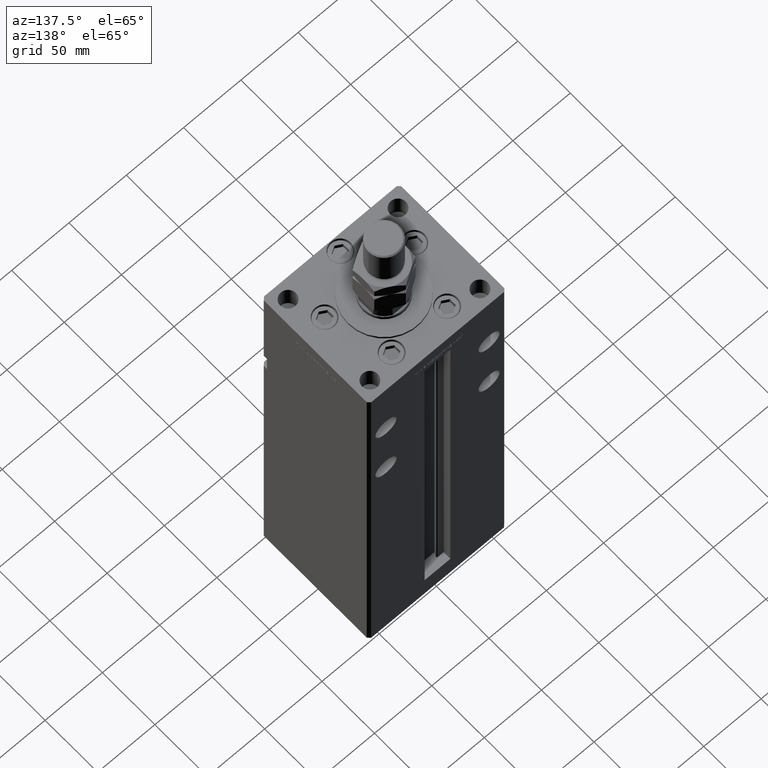
[diagram: clean part render]
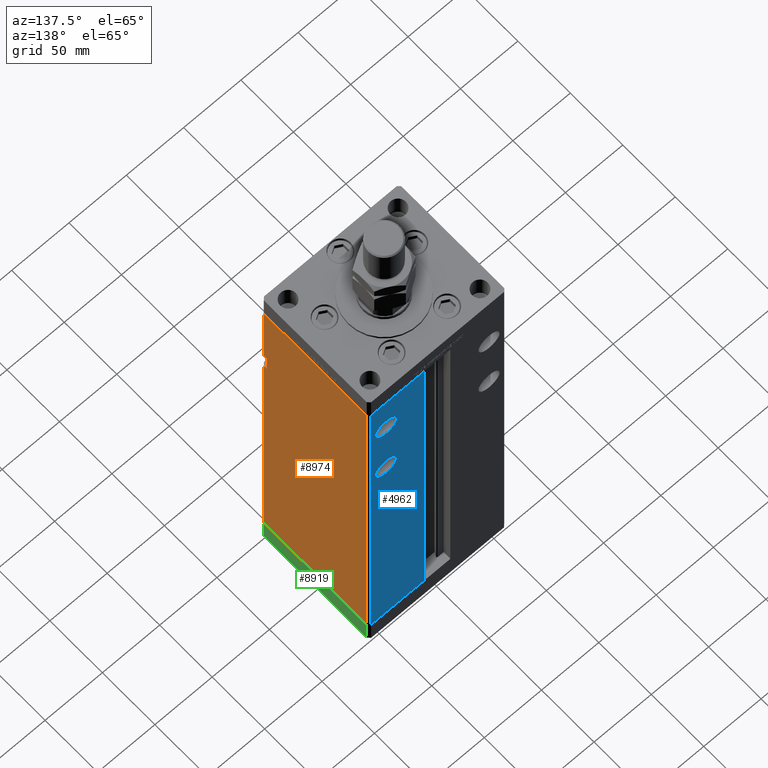
[diagram: same view with three faces highlighted in distinct colors, each labeled with its STEP entity id]
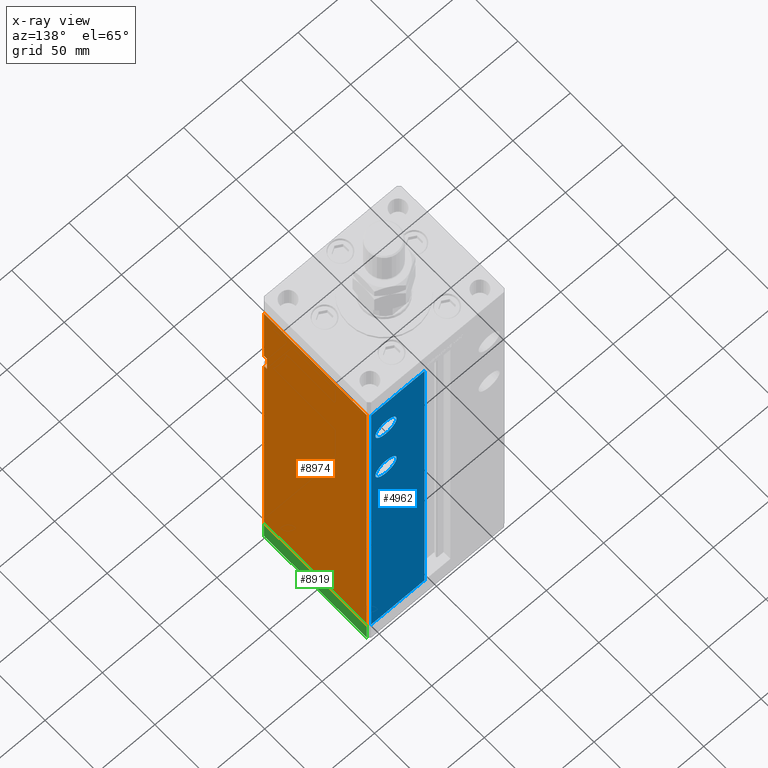
[diagram: x-ray of the same camera — body ghosted, the three highlighted faces saturated]
A machine part, auxiliary view with three faces highlighted in distinct colors.
The next image is the same camera in x-ray (body ghosted, the three faces saturated) — at least one of them is partly hidden behind the body in this view.
Their STEP definitions:

[orange] entity #8974 — the highlighted planar face has unit normal (1, -0, 0).
#2611 = VECTOR ( 'NONE', #12647, 1000.000000000000000 ) ;
#4215 = LINE ( 'NONE', #37969, #7097 ) ;
#4832 = DIRECTION ( 'NONE',  ( -0.000000000000000000, -1.000000000000000000, -0.000000000000000000 ) ) ;
#5504 = CARTESIAN_POINT ( 'NONE',  ( 60.00000000000001421, 49.00000000000000000, 0.000000000000000000 ) ) ;
#6026 = CARTESIAN_POINT ( 'NONE',  ( 59.99999999999998579, -46.00000000000000000, 239.0000000000000568 ) ) ;
#6085 = VECTOR ( 'NONE', #4832, 1000.000000000000000 ) ;
#7097 = VECTOR ( 'NONE', #29146, 1000.000000000000000 ) ;
#7158 = VERTEX_POINT ( 'NONE', #44858 ) ;
#7879 = CARTESIAN_POINT ( 'NONE',  ( 60.00000000000001421, 49.00000000000000000, 318.5000000000000000 ) ) ;
#8974 = ADVANCED_FACE ( 'NONE', ( #54634 ), #20356, .T. ) ;
#9258 = CARTESIAN_POINT ( 'NONE',  ( 59.99999999999998579, -45.99999999999999289, 254.0000000000000568 ) ) ;
#11767 = EDGE_CURVE ( 'NONE', #25380, #7158, #27939, .T. ) ;
#12077 = VECTOR ( 'NONE', #40346, 1000.000000000000000 ) ;
#12213 = CARTESIAN_POINT ( 'NONE',  ( 60.00000000000001421, 49.00000000000000000, 0.000000000000000000 ) ) ;
#12495 = LINE ( 'NONE', #12213, #20153 ) ;
#12647 = DIRECTION ( 'NONE',  ( -0.000000000000000000, -0.000000000000000000, 1.000000000000000000 ) ) ;
#13315 = VECTOR ( 'NONE', #53646, 1000.000000000000000 ) ;
#13455 = ORIENTED_EDGE ( 'NONE', *, *, #18091, .T. ) ;
#14052 = LINE ( 'NONE', #30955, #52824 ) ;
#14700 = VERTEX_POINT ( 'NONE', #34070 ) ;
#16931 = DIRECTION ( 'NONE',  ( -2.832201593431522219E-16, -1.000000000000000000, 0.000000000000000000 ) ) ;
#17924 = ORIENTED_EDGE ( 'NONE', *, *, #20737, .T. ) ;
#18091 = EDGE_CURVE ( 'NONE', #24128, #25380, #36201, .T. ) ;
#18800 = CARTESIAN_POINT ( 'NONE',  ( 59.99999999999998579, -48.99999999999998579, 0.000000000000000000 ) ) ;
#19413 = EDGE_CURVE ( 'NONE', #25080, #50049, #12495, .T. ) ;
#20153 = VECTOR ( 'NONE', #16931, 1000.000000000000000 ) ;
#20184 = VERTEX_POINT ( 'NONE', #44970 ) ;
#20356 = PLANE ( 'NONE',  #49569 ) ;
#20737 = EDGE_CURVE ( 'NONE', #14700, #50049, #14052, .T. ) ;
#21510 = LINE ( 'NONE', #54431, #2611 ) ;
#23484 = CARTESIAN_POINT ( 'NONE',  ( 60.00000000000001421, 49.00000000000000000, 318.5000000000000000 ) ) ;
#24128 = VERTEX_POINT ( 'NONE', #48721 ) ;
#24440 = EDGE_CURVE ( 'NONE', #27173, #20184, #21510, .T. ) ;
#24749 = CARTESIAN_POINT ( 'NONE',  ( 59.99999999999998579, -45.99999999999999289, 239.0000000000000568 ) ) ;
#25065 = DIRECTION ( 'NONE',  ( 1.000000000000000000, -2.832201593431522219E-16, 0.000000000000000000 ) ) ;
#25080 = VERTEX_POINT ( 'NONE', #5504 ) ;
#25380 = VERTEX_POINT ( 'NONE', #27296 ) ;
#26493 = EDGE_LOOP ( 'NONE', ( #38956, #17924, #28713, #50087, #13455, #44208, #41699, #41282 ) ) ;
#27173 = VERTEX_POINT ( 'NONE', #6026 ) ;
#27296 = CARTESIAN_POINT ( 'NONE',  ( 59.99999999999998579, -48.99999999999998579, 318.5000000000000000 ) ) ;
#27562 = EDGE_CURVE ( 'NONE', #20184, #7158, #29760, .T. ) ;
#27939 = LINE ( 'NONE', #48120, #13315 ) ;
#28713 = ORIENTED_EDGE ( 'NONE', *, *, #19413, .F. ) ;
#29146 = DIRECTION ( 'NONE',  ( -0.000000000000000000, -0.000000000000000000, -1.000000000000000000 ) ) ;
#29760 = LINE ( 'NONE', #9258, #6085 ) ;
#30676 = EDGE_CURVE ( 'NONE', #24128, #25080, #4215, .T. ) ;
#30955 = CARTESIAN_POINT ( 'NONE',  ( 59.99999999999998579, -48.99999999999998579, 318.5000000000000000 ) ) ;
#33326 = DIRECTION ( 'NONE',  ( -0.000000000000000000, -1.000000000000000000, -0.000000000000000000 ) ) ;
#33597 = LINE ( 'NONE', #24749, #39159 ) ;
#34070 = CARTESIAN_POINT ( 'NONE',  ( 59.99999999999998579, -48.99999999999998579, 239.0000000000000568 ) ) ;
#36201 = LINE ( 'NONE', #23484, #12077 ) ;
#37969 = CARTESIAN_POINT ( 'NONE',  ( 60.00000000000001421, 49.00000000000000000, 318.5000000000000000 ) ) ;
#38956 = ORIENTED_EDGE ( 'NONE', *, *, #43377, .T. ) ;
#39159 = VECTOR ( 'NONE', #33326, 1000.000000000000000 ) ;
#40346 = DIRECTION ( 'NONE',  ( -2.832201593431522219E-16, -1.000000000000000000, 0.000000000000000000 ) ) ;
#41282 = ORIENTED_EDGE ( 'NONE', *, *, #24440, .F. ) ;
#41699 = ORIENTED_EDGE ( 'NONE', *, *, #27562, .F. ) ;
#42190 = DIRECTION ( 'NONE',  ( 2.832201593431522219E-16, 1.000000000000000000, 0.000000000000000000 ) ) ;
#43377 = EDGE_CURVE ( 'NONE', #27173, #14700, #33597, .T. ) ;
#44208 = ORIENTED_EDGE ( 'NONE', *, *, #11767, .T. ) ;
#44768 = DIRECTION ( 'NONE',  ( -0.000000000000000000, -0.000000000000000000, -1.000000000000000000 ) ) ;
#44858 = CARTESIAN_POINT ( 'NONE',  ( 59.99999999999998579, -48.99999999999998579, 254.0000000000000568 ) ) ;
#44970 = CARTESIAN_POINT ( 'NONE',  ( 59.99999999999998579, -45.99999999999999289, 254.0000000000000568 ) ) ;
#48120 = CARTESIAN_POINT ( 'NONE',  ( 59.99999999999998579, -48.99999999999998579, 318.5000000000000000 ) ) ;
#48721 = CARTESIAN_POINT ( 'NONE',  ( 60.00000000000001421, 49.00000000000000000, 318.5000000000000000 ) ) ;
#49569 = AXIS2_PLACEMENT_3D ( 'NONE', #7879, #25065, #42190 ) ;
#50049 = VERTEX_POINT ( 'NONE', #18800 ) ;
#50087 = ORIENTED_EDGE ( 'NONE', *, *, #30676, .F. ) ;
#52824 = VECTOR ( 'NONE', #44768, 1000.000000000000000 ) ;
#53646 = DIRECTION ( 'NONE',  ( -0.000000000000000000, -0.000000000000000000, -1.000000000000000000 ) ) ;
#54431 = CARTESIAN_POINT ( 'NONE',  ( 59.99999999999998579, -45.99999999999999289, 254.0000000000000568 ) ) ;
#54634 = FACE_OUTER_BOUND ( 'NONE', #26493, .T. ) ;

[blue] entity #4962 — the highlighted planar face has unit normal (0, -1, 0).
#253 = CARTESIAN_POINT ( 'NONE',  ( 11.24999999999999822, 51.00000000000000711, 0.000000000000000000 ) ) ;
#936 = LINE ( 'NONE', #42720, #5621 ) ;
#1395 = DIRECTION ( 'NONE',  ( 0.000000000000000000, 1.000000000000000000, -0.000000000000000000 ) ) ;
#1749 = CIRCLE ( 'NONE', #54758, 9.249999999999980460 ) ;
#1862 = DIRECTION ( 'NONE',  ( 0.000000000000000000, -0.000000000000000000, -1.000000000000000000 ) ) ;
#3044 = ORIENTED_EDGE ( 'NONE', *, *, #34730, .T. ) ;
#3100 = VERTEX_POINT ( 'NONE', #11305 ) ;
#3521 = AXIS2_PLACEMENT_3D ( 'NONE', #29839, #7704, #21264 ) ;
#4569 = DIRECTION ( 'NONE',  ( 0.000000000000000000, 0.000000000000000000, 1.000000000000000000 ) ) ;
#4817 = CARTESIAN_POINT ( 'NONE',  ( 11.24999999999999112, 51.00000000000000711, 318.5000000000000000 ) ) ;
#4962 = ADVANCED_FACE ( 'NONE', ( #49181, #15153, #10710 ), #35904, .F. ) ;
#5621 = VECTOR ( 'NONE', #34418, 1000.000000000000000 ) ;
#6301 = CARTESIAN_POINT ( 'NONE',  ( -11.24999999999999822, 51.00000000000000711, 0.000000000000000000 ) ) ;
#6575 = ORIENTED_EDGE ( 'NONE', *, *, #32867, .T. ) ;
#7600 = CARTESIAN_POINT ( 'NONE',  ( 11.24999999999999822, 51.00000000000000711, 0.000000000000000000 ) ) ;
#7704 = DIRECTION ( 'NONE',  ( 0.000000000000000000, 1.000000000000000000, -0.000000000000000000 ) ) ;
#8199 = DIRECTION ( 'NONE',  ( 1.000000000000000000, 0.000000000000000000, 0.000000000000000000 ) ) ;
#8625 = CARTESIAN_POINT ( 'NONE',  ( 45.00000000000000000, 51.00000000000000711, 281.5000000000000000 ) ) ;
#10710 = FACE_OUTER_BOUND ( 'NONE', #22233, .T. ) ;
#10847 = VERTEX_POINT ( 'NONE', #41121 ) ;
#11305 = CARTESIAN_POINT ( 'NONE',  ( 45.00000000000000000, 51.00000000000000711, 272.2500000000000000 ) ) ;
#14595 = CARTESIAN_POINT ( 'NONE',  ( -11.24999999999999822, 51.00000000000000711, 318.5000000000000000 ) ) ;
#15153 = FACE_BOUND ( 'NONE', #29284, .T. ) ;
#15690 = CARTESIAN_POINT ( 'NONE',  ( -11.24999999999999822, 51.00000000000000711, 318.5000000000000000 ) ) ;
#17164 = EDGE_CURVE ( 'NONE', #33830, #21434, #30149, .T. ) ;
#17641 = CARTESIAN_POINT ( 'NONE',  ( 45.00000000000000000, 51.00000000000000711, 212.2500000000000000 ) ) ;
#18215 = LINE ( 'NONE', #6301, #49652 ) ;
#20827 = DIRECTION ( 'NONE',  ( 0.000000000000000000, 1.000000000000000000, 0.000000000000000000 ) ) ;
#21264 = DIRECTION ( 'NONE',  ( 0.000000000000000000, 0.000000000000000000, -1.000000000000000000 ) ) ;
#21413 = EDGE_LOOP ( 'NONE', ( #44738, #29082 ) ) ;
#21434 = VERTEX_POINT ( 'NONE', #4817 ) ;
#22048 = CIRCLE ( 'NONE', #3521, 9.250000000000008882 ) ;
#22233 = EDGE_LOOP ( 'NONE', ( #3044, #46250, #6575, #31322 ) ) ;
#22851 = CARTESIAN_POINT ( 'NONE',  ( 45.00000000000000000, 51.00000000000000711, 290.7499999999999432 ) ) ;
#23205 = DIRECTION ( 'NONE',  ( -1.000000000000000000, 0.000000000000000000, 0.000000000000000000 ) ) ;
#23221 = AXIS2_PLACEMENT_3D ( 'NONE', #27134, #1395, #50334 ) ;
#23830 = AXIS2_PLACEMENT_3D ( 'NONE', #14595, #31759, #1862 ) ;
#26626 = VECTOR ( 'NONE', #8199, 1000.000000000000000 ) ;
#27134 = CARTESIAN_POINT ( 'NONE',  ( 45.00000000000000000, 51.00000000000000711, 221.5000000000000000 ) ) ;
#29082 = ORIENTED_EDGE ( 'NONE', *, *, #41618, .F. ) ;
#29284 = EDGE_LOOP ( 'NONE', ( #44101, #33997 ) ) ;
#29839 = CARTESIAN_POINT ( 'NONE',  ( 45.00000000000000000, 51.00000000000000711, 221.5000000000000000 ) ) ;
#29905 = EDGE_CURVE ( 'NONE', #3100, #54213, #1749, .T. ) ;
#30149 = LINE ( 'NONE', #253, #31562 ) ;
#31322 = ORIENTED_EDGE ( 'NONE', *, *, #39575, .T. ) ;
#31562 = VECTOR ( 'NONE', #34016, 1000.000000000000000 ) ;
#31759 = DIRECTION ( 'NONE',  ( 0.000000000000000000, -1.000000000000000000, 0.000000000000000000 ) ) ;
#32583 = LINE ( 'NONE', #15690, #26626 ) ;
#32621 = VERTEX_POINT ( 'NONE', #17641 ) ;
#32867 = EDGE_CURVE ( 'NONE', #21434, #47385, #32583, .T. ) ;
#33830 = VERTEX_POINT ( 'NONE', #7600 ) ;
#33997 = ORIENTED_EDGE ( 'NONE', *, *, #29905, .F. ) ;
#34016 = DIRECTION ( 'NONE',  ( -0.000000000000000000, -0.000000000000000000, 1.000000000000000000 ) ) ;
#34418 = DIRECTION ( 'NONE',  ( -0.000000000000000000, -0.000000000000000000, -1.000000000000000000 ) ) ;
#34730 = EDGE_CURVE ( 'NONE', #51473, #33830, #18215, .T. ) ;
#35425 = AXIS2_PLACEMENT_3D ( 'NONE', #42475, #37780, #4569 ) ;
#35904 = PLANE ( 'NONE',  #23830 ) ;
#37696 = DIRECTION ( 'NONE',  ( 0.000000000000000000, 0.000000000000000000, 1.000000000000000000 ) ) ;
#37780 = DIRECTION ( 'NONE',  ( 0.000000000000000000, 1.000000000000000000, 0.000000000000000000 ) ) ;
#38039 = CARTESIAN_POINT ( 'NONE',  ( 57.99999999999999289, 51.00000000000000711, 0.000000000000000000 ) ) ;
#39575 = EDGE_CURVE ( 'NONE', #47385, #51473, #936, .T. ) ;
#41121 = CARTESIAN_POINT ( 'NONE',  ( 45.00000000000000000, 51.00000000000000711, 230.7500000000000000 ) ) ;
#41412 = CARTESIAN_POINT ( 'NONE',  ( 57.99999999999999289, 51.00000000000000711, 318.5000000000000000 ) ) ;
#41618 = EDGE_CURVE ( 'NONE', #32621, #10847, #49844, .T. ) ;
#42475 = CARTESIAN_POINT ( 'NONE',  ( 45.00000000000000000, 51.00000000000000711, 281.5000000000000000 ) ) ;
#42720 = CARTESIAN_POINT ( 'NONE',  ( 57.99999999999999289, 51.00000000000000711, 318.5000000000000000 ) ) ;
#44101 = ORIENTED_EDGE ( 'NONE', *, *, #49464, .F. ) ;
#44738 = ORIENTED_EDGE ( 'NONE', *, *, #46268, .F. ) ;
#46250 = ORIENTED_EDGE ( 'NONE', *, *, #17164, .T. ) ;
#46268 = EDGE_CURVE ( 'NONE', #10847, #32621, #22048, .T. ) ;
#47385 = VERTEX_POINT ( 'NONE', #41412 ) ;
#49181 = FACE_BOUND ( 'NONE', #21413, .T. ) ;
#49464 = EDGE_CURVE ( 'NONE', #54213, #3100, #50448, .T. ) ;
#49652 = VECTOR ( 'NONE', #23205, 1000.000000000000000 ) ;
#49844 = CIRCLE ( 'NONE', #23221, 9.250000000000008882 ) ;
#50334 = DIRECTION ( 'NONE',  ( 0.000000000000000000, 0.000000000000000000, -1.000000000000000000 ) ) ;
#50448 = CIRCLE ( 'NONE', #35425, 9.249999999999980460 ) ;
#51473 = VERTEX_POINT ( 'NONE', #38039 ) ;
#54213 = VERTEX_POINT ( 'NONE', #22851 ) ;
#54758 = AXIS2_PLACEMENT_3D ( 'NONE', #8625, #20827, #37696 ) ;

[green] entity #8919 — the highlighted planar face has unit normal (1, 0, 0).
#1169 = CARTESIAN_POINT ( 'NONE',  ( -60.00000000000000000, 48.99999999999995737, 0.000000000000000000 ) ) ;
#2874 = VERTEX_POINT ( 'NONE', #39002 ) ;
#3201 = DIRECTION ( 'NONE',  ( 0.000000000000000000, 0.000000000000000000, 1.000000000000000000 ) ) ;
#6305 = CARTESIAN_POINT ( 'NONE',  ( -60.00000000000000000, -49.00000000000000000, 0.000000000000000000 ) ) ;
#8919 = ADVANCED_FACE ( 'NONE', ( #31443 ), #15389, .T. ) ;
#9479 = DIRECTION ( 'NONE',  ( 0.000000000000000000, -1.000000000000000000, 0.000000000000000000 ) ) ;
#13245 = LINE ( 'NONE', #13798, #33497 ) ;
#13798 = CARTESIAN_POINT ( 'NONE',  ( -60.00000000000000000, -49.00000000000000000, -20.00000000000000000 ) ) ;
#14310 = VERTEX_POINT ( 'NONE', #45500 ) ;
#14920 = DIRECTION ( 'NONE',  ( 0.000000000000000000, 0.000000000000000000, 1.000000000000000000 ) ) ;
#15208 = LINE ( 'NONE', #53923, #17020 ) ;
#15389 = PLANE ( 'NONE',  #29273 ) ;
#16715 = EDGE_LOOP ( 'NONE', ( #50186, #23853, #47864, #31578 ) ) ;
#17020 = VECTOR ( 'NONE', #14920, 1000.000000000000000 ) ;
#17926 = VERTEX_POINT ( 'NONE', #6305 ) ;
#20954 = VERTEX_POINT ( 'NONE', #43863 ) ;
#23187 = VECTOR ( 'NONE', #31595, 1000.000000000000000 ) ;
#23698 = CARTESIAN_POINT ( 'NONE',  ( -60.00000000000000000, 48.99999999999995737, -20.00000000000000000 ) ) ;
#23853 = ORIENTED_EDGE ( 'NONE', *, *, #37337, .F. ) ;
#25740 = DIRECTION ( 'NONE',  ( 0.000000000000000000, 0.000000000000000000, 1.000000000000000000 ) ) ;
#27000 = EDGE_CURVE ( 'NONE', #2874, #17926, #13245, .T. ) ;
#29273 = AXIS2_PLACEMENT_3D ( 'NONE', #23698, #53554, #3201 ) ;
#31058 = LINE ( 'NONE', #1169, #23187 ) ;
#31443 = FACE_OUTER_BOUND ( 'NONE', #16715, .T. ) ;
#31578 = ORIENTED_EDGE ( 'NONE', *, *, #27000, .T. ) ;
#31595 = DIRECTION ( 'NONE',  ( 0.000000000000000000, -1.000000000000000000, 0.000000000000000000 ) ) ;
#33497 = VECTOR ( 'NONE', #25740, 1000.000000000000000 ) ;
#35476 = LINE ( 'NONE', #47115, #53169 ) ;
#35973 = EDGE_CURVE ( 'NONE', #14310, #17926, #31058, .T. ) ;
#37337 = EDGE_CURVE ( 'NONE', #20954, #14310, #15208, .T. ) ;
#39002 = CARTESIAN_POINT ( 'NONE',  ( -60.00000000000000000, -49.00000000000000000, -20.00000000000000000 ) ) ;
#43863 = CARTESIAN_POINT ( 'NONE',  ( -60.00000000000000000, 48.99999999999995737, -20.00000000000000000 ) ) ;
#45500 = CARTESIAN_POINT ( 'NONE',  ( -60.00000000000000000, 48.99999999999995737, 0.000000000000000000 ) ) ;
#47115 = CARTESIAN_POINT ( 'NONE',  ( -60.00000000000000000, 48.99999999999995737, -20.00000000000000000 ) ) ;
#47864 = ORIENTED_EDGE ( 'NONE', *, *, #50618, .T. ) ;
#50186 = ORIENTED_EDGE ( 'NONE', *, *, #35973, .F. ) ;
#50618 = EDGE_CURVE ( 'NONE', #20954, #2874, #35476, .T. ) ;
#53169 = VECTOR ( 'NONE', #9479, 1000.000000000000000 ) ;
#53554 = DIRECTION ( 'NONE',  ( -1.000000000000000000, 0.000000000000000000, 0.000000000000000000 ) ) ;
#53923 = CARTESIAN_POINT ( 'NONE',  ( -60.00000000000000000, 48.99999999999995737, -20.00000000000000000 ) ) ;